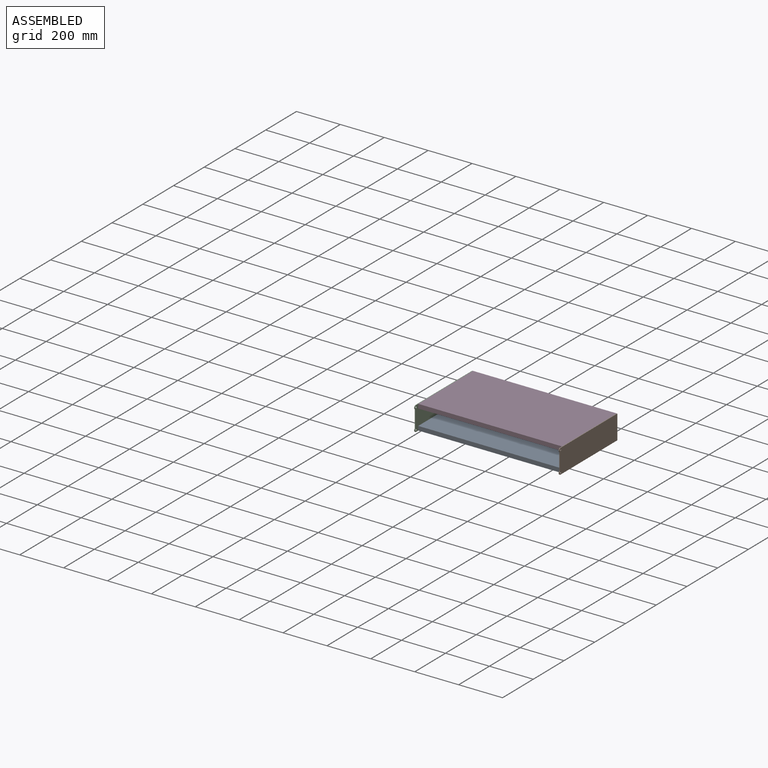
[diagram: assembled view]
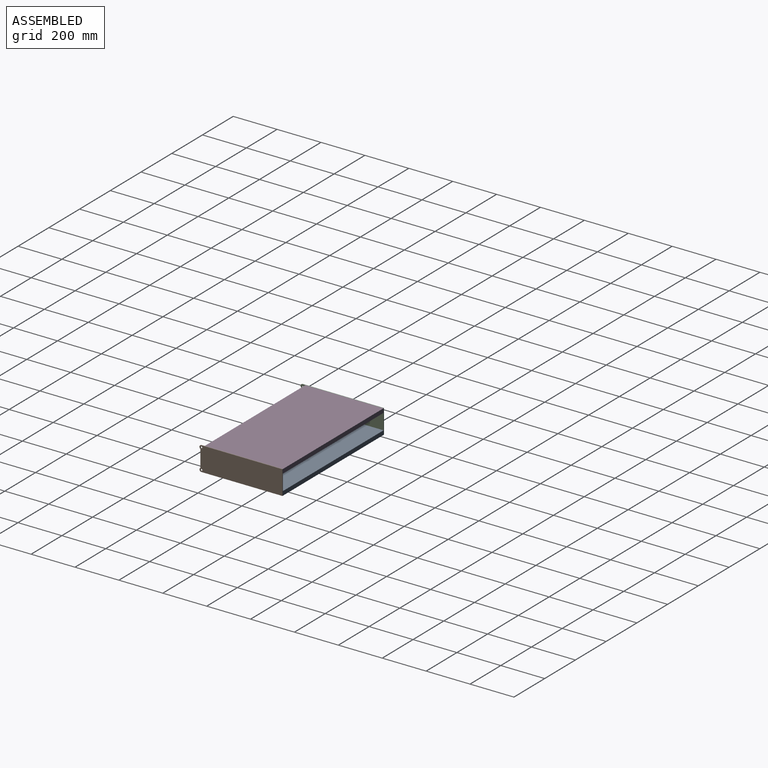
[diagram: assembled view, second angle]
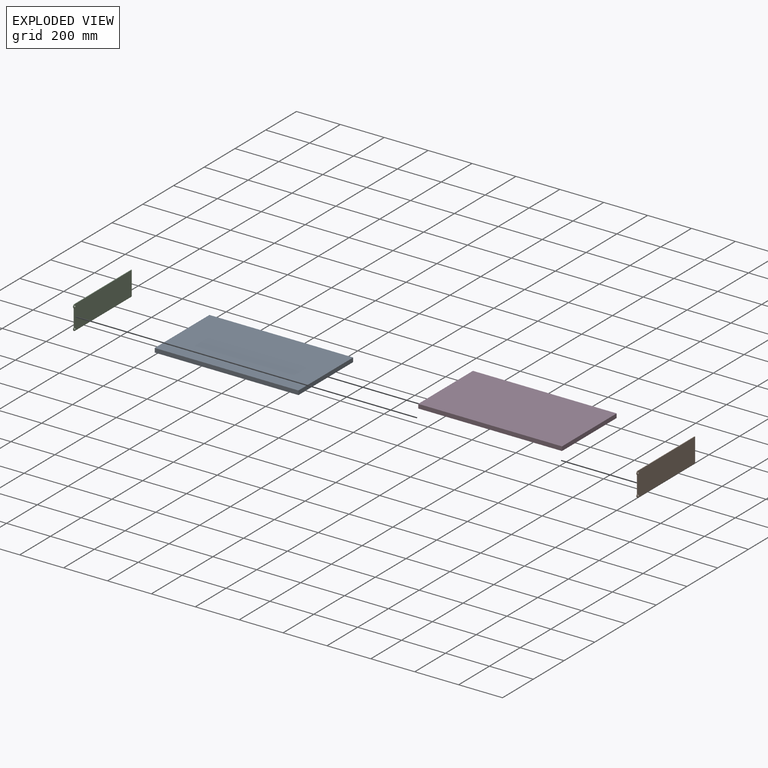
[diagram: exploded view]
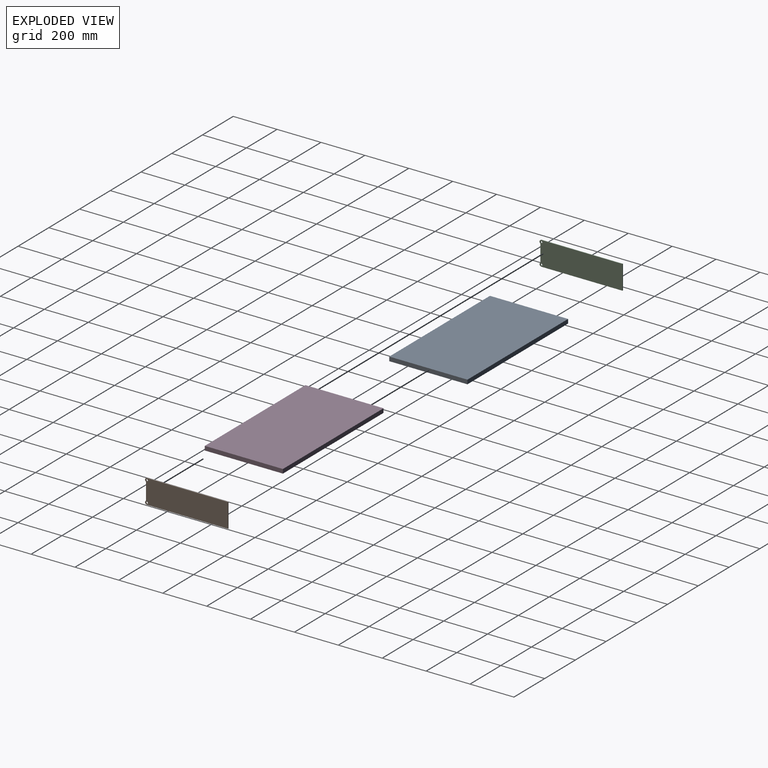
[diagram: exploded view, second angle]
ASSEMBLY  parts=4 mates=3
PART A: 6 faces, bbox 19.1x655x356 mm
  f0: plane 654.95x19.05mm, normal (0,0,1), area 12476.8mm2, adj f1,f3,f4,f5
  f1: plane 356x19.05mm, normal (0,-1,0), area 6781.8mm2, adj f0,f2,f4,f5
  f2: plane 654.95x19.05mm, normal (0,0,-1), area 12476.8mm2, adj f1,f3,f4,f5
  f3: plane 356x19.05mm, normal (0,1,0), area 6781.8mm2, adj f0,f2,f4,f5
  f4: plane 654.95x356mm, normal (1,0,0), area 233162.2mm2, adj f0,f1,f2,f3
  f5: plane 654.95x356mm, normal (-1,0,0), area 233162.2mm2, adj f0,f1,f2,f3
PART B: 10 faces, bbox 3.2x378.1x109.9 mm
  f0: plane 369.61x3.18mm, normal (0,0,1), area 1173.5mm2, adj f1,f6,f8,f9
  f1: cylinder r=8.53mm len=15.88mm, axis (-1,0,0), area 70.7mm2, adj f0,f2,f8,f9
  f2: plane 78.36x3.18mm, normal (0,-1,0), area 248.8mm2, adj f1,f3,f8,f9
  f3: cylinder r=8.43mm len=15.66mm, axis (-1,0,0), area 69.6mm2, adj f2,f4,f8,f9
  f4: plane 369.62x3.18mm, normal (0,0,-1), area 1173.5mm2, adj f3,f6,f8,f9
  f5: cylinder r=4mm len=8mm, axis (-1,0,0), area 79.8mm2, adj f8,f9
  f6: plane 109.9x3.18mm, normal (0,1,0), area 348.9mm2, adj f0,f4,f8,f9
  f7: cylinder r=4mm len=8mm, axis (-1,0,0), area 79.8mm2, adj f8,f9
  f8: plane 378.15x109.9mm, normal (1,0,0), area 41077.6mm2, adj f0,f1,f2,f3,f4,f5,f6,f7
  f9: plane 378.15x109.9mm, normal (-1,0,0), area 41077.6mm2, adj f0,f1,f2,f3,f4,f5,f6,f7
PART C: same geometry as B
PART D: same geometry as A
PLACE A rot(axis=(-0.58,0.58,0.58),120deg) t=(-1234.12,3088.37,-4301.03)mm
PLACE B t=(658.12,0,-19.05)mm
PLACE C t=(0,0,-19.05)mm
PLACE D rot(axis=(-0.58,0.58,0.58),120deg) t=(-1234.12,3088.37,-4210.18)mm
MATE fastened D.f1 <-> B.f9  axis (1,0,0) through (658.12,-312.01,-4210.18)mm
MATE fastened B.f9 <-> A.f1  axis (-1,0,0) through (658.12,-312.01,-4320.08)mm
MATE fastened D.f3 <-> C.f8  axis (-1,0,0) through (3.17,-312.01,-4210.18)mm
